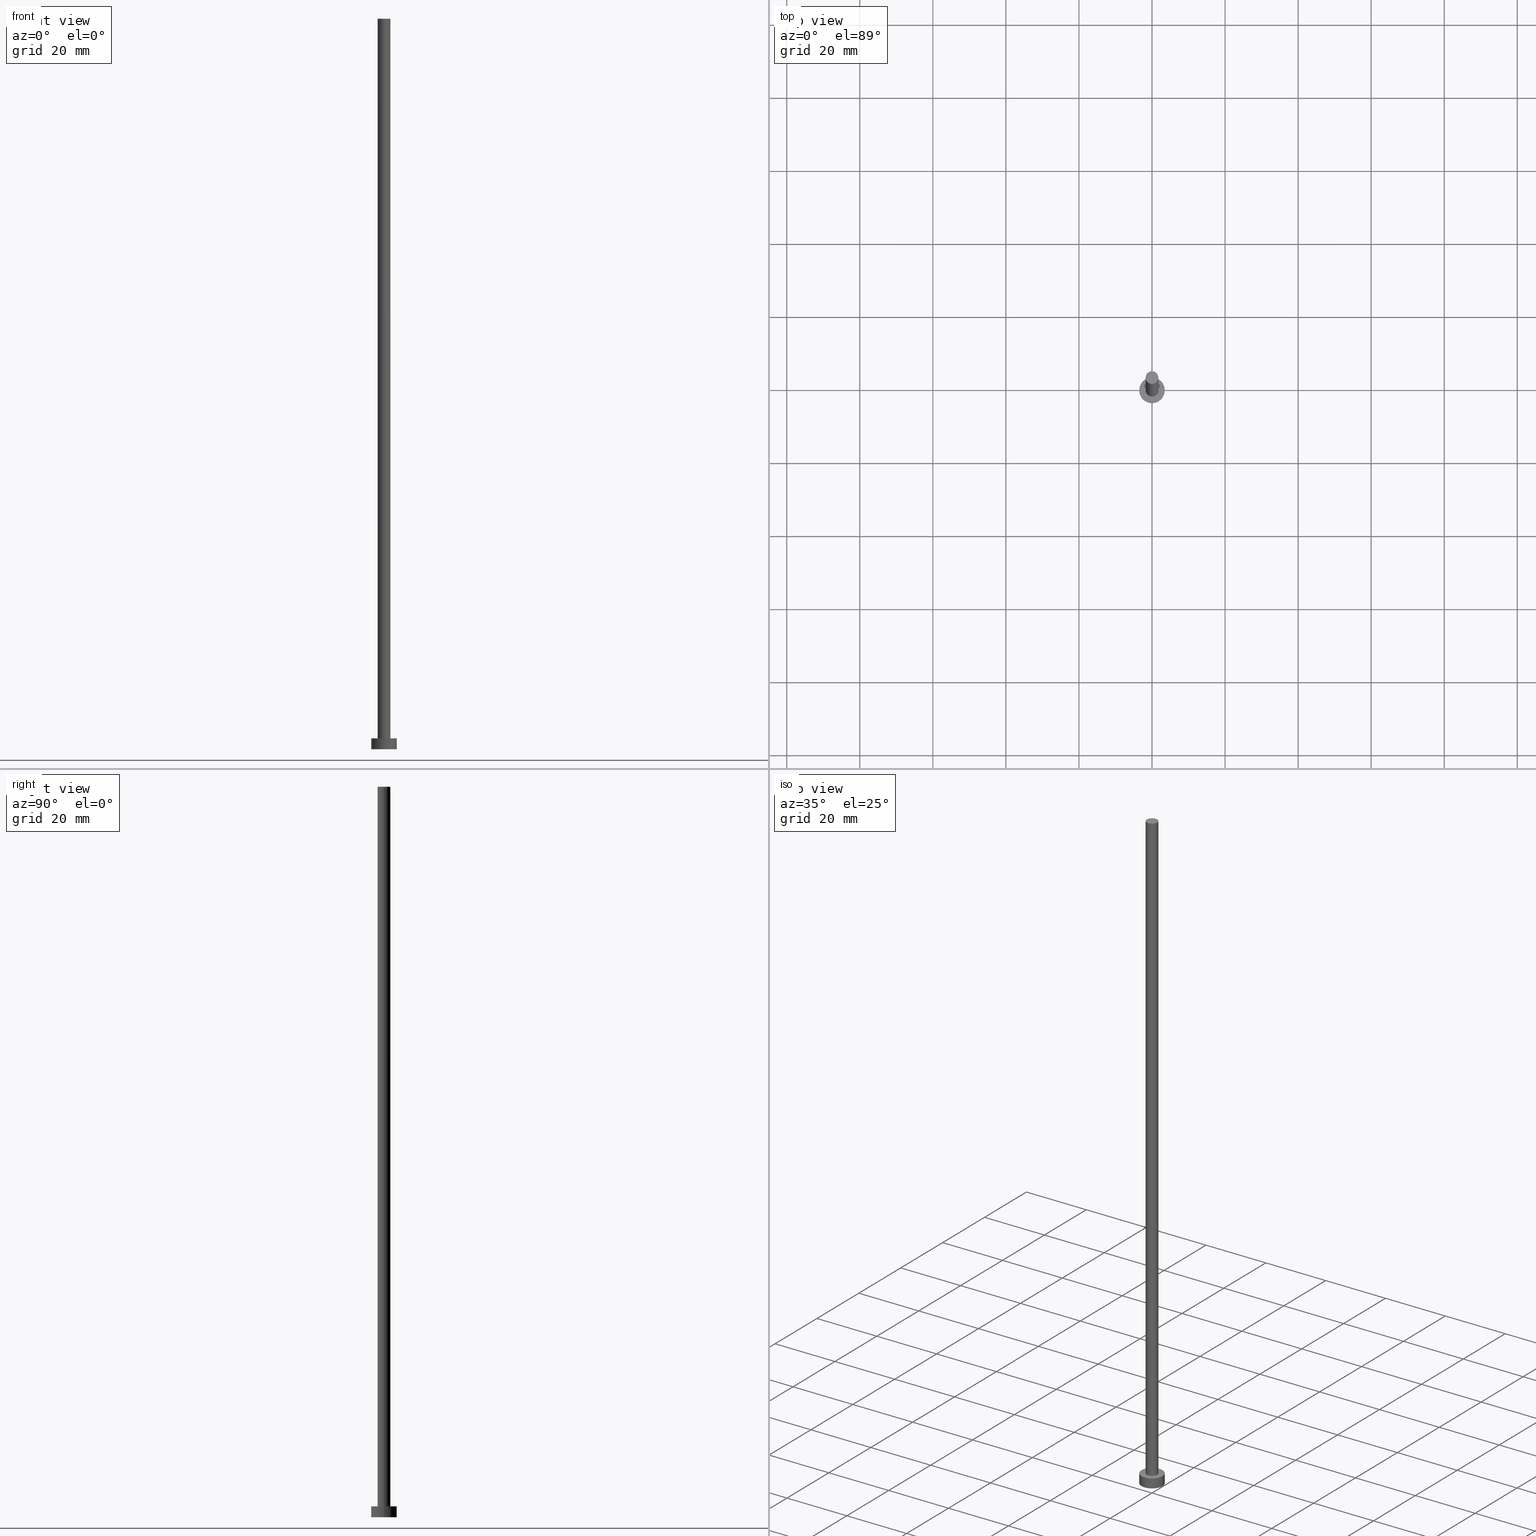
[diagram: canonical four-view strip — front | top / right | iso, engineering-drawing reading convention]
A machine part, canonical four-view strip (front | top / right | iso — engineering-drawing reading convention). The complete STEP part file that produces these views, byte-faithful:
ISO-10303-21;
HEADER;
FILE_DESCRIPTION (( 'STEP AP203' ),
    '1' );
FILE_NAME ('cb71.STEP',
    '2023-02-13T15:34:31',
    ( '' ),
    ( '' ),
    'SwSTEP 2.0',
    'SolidWorks 2019',
    '' );
FILE_SCHEMA (( 'CONFIG_CONTROL_DESIGN' ));
ENDSEC;

DATA;
#1 = FACE_BOUND ( 'NONE', #191, .T. ) ;
#2 = DIRECTION ( 'NONE',  ( -0.000000000000000000, -0.000000000000000000, -1.000000000000000000 ) ) ;
#3 = PERSON_AND_ORGANIZATION_ROLE ( 'creator' ) ;
#4 = SHAPE_DEFINITION_REPRESENTATION ( #105, #78 ) ;
#5 = PERSON_AND_ORGANIZATION_ROLE ( 'classification_officer' ) ;
#6 = ADVANCED_FACE ( 'NONE', ( #221 ), #249, .T. ) ;
#7 = CARTESIAN_POINT ( 'NONE',  ( -1.750000000000000000, 0.000000000000000000, 200.0000000000000000 ) ) ;
#8 = VERTEX_POINT ( 'NONE', #225 ) ;
#9 = VERTEX_POINT ( 'NONE', #138 ) ;
#10 = SECURITY_CLASSIFICATION ( '', '', #59 ) ;
#11 = PERSON_AND_ORGANIZATION_ROLE ( 'design_owner' ) ;
#12 = EDGE_LOOP ( 'NONE', ( #164, #171 ) ) ;
#13 = DIRECTION ( 'NONE',  ( 1.000000000000000000, 0.000000000000000000, 0.000000000000000000 ) ) ;
#14 = EDGE_LOOP ( 'NONE', ( #152, #204 ) ) ;
#15 = FACE_OUTER_BOUND ( 'NONE', #12, .T. ) ;
#16 = EDGE_CURVE ( 'NONE', #227, #8, #236, .T. ) ;
#17 = CARTESIAN_POINT ( 'NONE',  ( 1.750000000000000000, 2.143131898507868297E-16, 200.0000000000000000 ) ) ;
#18 = CIRCLE ( 'NONE', #35, 1.750000000000000000 ) ;
#19 = ORIENTED_EDGE ( 'NONE', *, *, #141, .T. ) ;
#20 = CARTESIAN_POINT ( 'NONE',  ( 3.500000000000000444, 4.286263797015737088E-16, 3.000000000000000000 ) ) ;
#21 = AXIS2_PLACEMENT_3D ( 'NONE', #144, #220, #216 ) ;
#22 = PERSON_AND_ORGANIZATION ( #243, #156 ) ;
#23 = EDGE_CURVE ( 'NONE', #8, #228, #57, .T. ) ;
#24 = DIRECTION ( 'NONE',  ( -0.000000000000000000, -0.000000000000000000, -1.000000000000000000 ) ) ;
#25 = DIRECTION ( 'NONE',  ( 0.000000000000000000, 0.000000000000000000, 1.000000000000000000 ) ) ;
#26 = APPROVAL ( #121, 'NEUR�EN�' ) ;
#27 = ADVANCED_FACE ( 'NONE', ( #173 ), #52, .T. ) ;
#28 = CARTESIAN_POINT ( 'NONE',  ( -1.750000000000000000, 0.000000000000000000, 3.000000000000000000 ) ) ;
#29 = ORIENTED_EDGE ( 'NONE', *, *, #108, .T. ) ;
#30 = VECTOR ( 'NONE', #93, 1000.000000000000000 ) ;
#31 = CARTESIAN_POINT ( 'NONE',  ( 1.750000000000000000, 2.143131898507868297E-16, 3.000000000000000000 ) ) ;
#32 = CARTESIAN_POINT ( 'NONE',  ( -1.750000000000000000, 0.000000000000000000, 200.0000000000000000 ) ) ;
#33 = ORIENTED_EDGE ( 'NONE', *, *, #233, .F. ) ;
#34 = CALENDAR_DATE ( 2023, 13, 2 ) ;
#35 = AXIS2_PLACEMENT_3D ( 'NONE', #133, #92, #13 ) ;
#36 = PLANE ( 'NONE',  #218 ) ;
#37 = ADVANCED_FACE ( 'NONE', ( #55 ), #116, .T. ) ;
#38 = COORDINATED_UNIVERSAL_TIME_OFFSET ( 1, 0, .AHEAD. ) ;
#39 = CC_DESIGN_PERSON_AND_ORGANIZATION_ASSIGNMENT ( #82, #3, ( #79 ) ) ;
#40 = APPROVAL_DATE_TIME ( #192, #182 ) ;
#41 = DIRECTION ( 'NONE',  ( 0.000000000000000000, 0.000000000000000000, 1.000000000000000000 ) ) ;
#42 = APPROVAL_ROLE ( '' ) ;
#43 = LOCAL_TIME ( 16, 34, 31.00000000000000000, #56 ) ;
#44 = CARTESIAN_POINT ( 'NONE',  ( 0.000000000000000000, 0.000000000000000000, 200.0000000000000000 ) ) ;
#45 = DIRECTION ( 'NONE',  ( 0.000000000000000000, 0.000000000000000000, 1.000000000000000000 ) ) ;
#46 = EDGE_LOOP ( 'NONE', ( #188, #117 ) ) ;
#47 = VERTEX_POINT ( 'NONE', #28 ) ;
#48 = AXIS2_PLACEMENT_3D ( 'NONE', #183, #109, #118 ) ;
#49 =( NAMED_UNIT ( * ) SI_UNIT ( $, .STERADIAN. ) SOLID_ANGLE_UNIT ( ) );
#50 =( NAMED_UNIT ( * ) PLANE_ANGLE_UNIT ( ) SI_UNIT ( $, .RADIAN. ) );
#51 = DIRECTION ( 'NONE',  ( 1.000000000000000000, 0.000000000000000000, -0.000000000000000000 ) ) ;
#52 = CYLINDRICAL_SURFACE ( 'NONE', #230, 1.750000000000000000 ) ;
#53 = CC_DESIGN_APPROVAL ( #26, ( #162 ) ) ;
#54 = CC_DESIGN_PERSON_AND_ORGANIZATION_ASSIGNMENT ( #89, #11, ( #219 ) ) ;
#55 = FACE_OUTER_BOUND ( 'NONE', #46, .T. ) ;
#56 = COORDINATED_UNIVERSAL_TIME_OFFSET ( 1, 0, .AHEAD. ) ;
#57 = CIRCLE ( 'NONE', #161, 3.500000000000000444 ) ;
#58 = CARTESIAN_POINT ( 'NONE',  ( 0.000000000000000000, 0.000000000000000000, 0.000000000000000000 ) ) ;
#59 = SECURITY_CLASSIFICATION_LEVEL ( 'unclassified' ) ;
#60 = LOCAL_TIME ( 16, 34, 31.00000000000000000, #38 ) ;
#61 = EDGE_CURVE ( 'NONE', #47, #150, #18, .T. ) ;
#62 = AXIS2_PLACEMENT_3D ( 'NONE', #245, #146, #168 ) ;
#63 = LOCAL_TIME ( 16, 34, 31.00000000000000000, #153 ) ;
#64 = DIRECTION ( 'NONE',  ( 0.000000000000000000, 0.000000000000000000, 1.000000000000000000 ) ) ;
#65 = ORIENTED_EDGE ( 'NONE', *, *, #69, .F. ) ;
#66 = FACE_OUTER_BOUND ( 'NONE', #14, .T. ) ;
#67 = DIRECTION ( 'NONE',  ( 1.000000000000000000, 0.000000000000000000, 0.000000000000000000 ) ) ;
#68 = CARTESIAN_POINT ( 'NONE',  ( 0.000000000000000000, 0.000000000000000000, 200.0000000000000000 ) ) ;
#69 = EDGE_CURVE ( 'NONE', #91, #9, #200, .T. ) ;
#70 = LINE ( 'NONE', #17, #30 ) ;
#71 = ORIENTED_EDGE ( 'NONE', *, *, #23, .T. ) ;
#72 = AXIS2_PLACEMENT_3D ( 'NONE', #68, #223, #131 ) ;
#73 = AXIS2_PLACEMENT_3D ( 'NONE', #44, #45, #198 ) ;
#74 = DIRECTION ( 'NONE',  ( 1.000000000000000000, 0.000000000000000000, 0.000000000000000000 ) ) ;
#75 = ORIENTED_EDGE ( 'NONE', *, *, #159, .F. ) ;
#76 = DATE_AND_TIME ( #34, #81 ) ;
#77 = APPROVAL_DATE_TIME ( #76, #26 ) ;
#78 = ADVANCED_BREP_SHAPE_REPRESENTATION ( 'cb71', ( #195, #231 ), #238 ) ;
#79 = PRODUCT_DEFINITION_FORMATION_WITH_SPECIFIED_SOURCE ( 'LIBOVOLN�', '', #219, .NOT_KNOWN. ) ;
#80 = CC_DESIGN_DATE_AND_TIME_ASSIGNMENT ( #229, #99, ( #162 ) ) ;
#81 = LOCAL_TIME ( 16, 34, 31.00000000000000000, #112 ) ;
#82 = PERSON_AND_ORGANIZATION ( #243, #156 ) ;
#83 = APPROVAL ( #126, 'NEUR�EN�' ) ;
#84 = CC_DESIGN_PERSON_AND_ORGANIZATION_ASSIGNMENT ( #239, #104, ( #79 ) ) ;
#85 = DESIGN_CONTEXT ( 'detailed design', #176, 'design' ) ;
#86 = ORIENTED_EDGE ( 'NONE', *, *, #61, .T. ) ;
#87 = APPROVAL_PERSON_ORGANIZATION ( #234, #83, #181 ) ;
#88 = ORIENTED_EDGE ( 'NONE', *, *, #16, .F. ) ;
#89 = PERSON_AND_ORGANIZATION ( #243, #156 ) ;
#90 = DIRECTION ( 'NONE',  ( -0.000000000000000000, -0.000000000000000000, -1.000000000000000000 ) ) ;
#91 = VERTEX_POINT ( 'NONE', #32 ) ;
#92 = DIRECTION ( 'NONE',  ( 0.000000000000000000, 0.000000000000000000, 1.000000000000000000 ) ) ;
#93 = DIRECTION ( 'NONE',  ( -0.000000000000000000, -0.000000000000000000, -1.000000000000000000 ) ) ;
#94 = ORIENTED_EDGE ( 'NONE', *, *, #155, .F. ) ;
#95 = CC_DESIGN_SECURITY_CLASSIFICATION ( #10, ( #79 ) ) ;
#96 = DIRECTION ( 'NONE',  ( -0.000000000000000000, -0.000000000000000000, -1.000000000000000000 ) ) ;
#97 = CARTESIAN_POINT ( 'NONE',  ( 3.500000000000000444, 4.286263797015737088E-16, 3.000000000000000000 ) ) ;
#98 = APPLICATION_CONTEXT ( 'configuration controlled 3d designs of mechanical parts and assemblies' ) ;
#99 = DATE_TIME_ROLE ( 'creation_date' ) ;
#100 = DATE_AND_TIME ( #211, #215 ) ;
#101 = VECTOR ( 'NONE', #154, 1000.000000000000000 ) ;
#102 = DIRECTION ( 'NONE',  ( 1.000000000000000000, 0.000000000000000000, 0.000000000000000000 ) ) ;
#103 = DIRECTION ( 'NONE',  ( 1.000000000000000000, 0.000000000000000000, 0.000000000000000000 ) ) ;
#104 = PERSON_AND_ORGANIZATION_ROLE ( 'design_supplier' ) ;
#105 = PRODUCT_DEFINITION_SHAPE ( 'NONE', 'NONE',  #162 ) ;
#106 = VECTOR ( 'NONE', #96, 1000.000000000000000 ) ;
#107 = CIRCLE ( 'NONE', #140, 3.500000000000000444 ) ;
#108 = EDGE_CURVE ( 'NONE', #228, #8, #207, .T. ) ;
#109 = DIRECTION ( 'NONE',  ( 0.000000000000000000, 0.000000000000000000, 1.000000000000000000 ) ) ;
#110 = VERTEX_POINT ( 'NONE', #165 ) ;
#111 = CLOSED_SHELL ( 'NONE', ( #6, #170, #174, #247, #213, #27, #37 ) ) ;
#112 = COORDINATED_UNIVERSAL_TIME_OFFSET ( 1, 0, .AHEAD. ) ;
#113 = AXIS2_PLACEMENT_3D ( 'NONE', #235, #24, #163 ) ;
#114 = ORIENTED_EDGE ( 'NONE', *, *, #194, .F. ) ;
#115 = APPLICATION_PROTOCOL_DEFINITION ( 'international standard', 'config_control_design', 1994, #176 ) ;
#116 = PLANE ( 'NONE',  #241 ) ;
#117 = ORIENTED_EDGE ( 'NONE', *, *, #155, .T. ) ;
#118 = DIRECTION ( 'NONE',  ( 1.000000000000000000, 0.000000000000000000, 0.000000000000000000 ) ) ;
#119 = ORIENTED_EDGE ( 'NONE', *, *, #16, .T. ) ;
#120 = CC_DESIGN_DATE_AND_TIME_ASSIGNMENT ( #100, #139, ( #10 ) ) ;
#121 = APPROVAL_STATUS ( 'not_yet_approved' ) ;
#122 = CARTESIAN_POINT ( 'NONE',  ( 0.000000000000000000, 0.000000000000000000, 0.000000000000000000 ) ) ;
#123 = CALENDAR_DATE ( 2023, 13, 2 ) ;
#124 = CYLINDRICAL_SURFACE ( 'NONE', #113, 3.500000000000000444 ) ;
#125 = PLANE ( 'NONE',  #209 ) ;
#126 = APPROVAL_STATUS ( 'not_yet_approved' ) ;
#127 = CC_DESIGN_APPROVAL ( #83, ( #79 ) ) ;
#128 = EDGE_CURVE ( 'NONE', #91, #47, #203, .T. ) ;
#129 = ORIENTED_EDGE ( 'NONE', *, *, #61, .F. ) ;
#130 = CARTESIAN_POINT ( 'NONE',  ( 0.000000000000000000, 0.000000000000000000, 3.000000000000000000 ) ) ;
#131 = DIRECTION ( 'NONE',  ( -1.000000000000000000, 0.000000000000000000, 0.000000000000000000 ) ) ;
#132 = CIRCLE ( 'NONE', #21, 3.500000000000000444 ) ;
#133 = CARTESIAN_POINT ( 'NONE',  ( 0.000000000000000000, 0.000000000000000000, 3.000000000000000000 ) ) ;
#134 = CARTESIAN_POINT ( 'NONE',  ( 0.000000000000000000, 0.000000000000000000, 200.0000000000000000 ) ) ;
#135 = DIRECTION ( 'NONE',  ( 0.000000000000000000, 0.000000000000000000, 1.000000000000000000 ) ) ;
#136 = LINE ( 'NONE', #208, #101 ) ;
#137 = CARTESIAN_POINT ( 'NONE',  ( 0.000000000000000000, 0.000000000000000000, 0.000000000000000000 ) ) ;
#138 = CARTESIAN_POINT ( 'NONE',  ( 1.750000000000000000, 2.143131898507868297E-16, 200.0000000000000000 ) ) ;
#139 = DATE_TIME_ROLE ( 'classification_date' ) ;
#140 = AXIS2_PLACEMENT_3D ( 'NONE', #160, #41, #103 ) ;
#141 = EDGE_CURVE ( 'NONE', #9, #150, #70, .T. ) ;
#142 = APPROVAL_STATUS ( 'not_yet_approved' ) ;
#143 = APPROVAL_PERSON_ORGANIZATION ( #212, #182, #42 ) ;
#144 = CARTESIAN_POINT ( 'NONE',  ( 0.000000000000000000, 0.000000000000000000, 3.000000000000000000 ) ) ;
#145 = EDGE_CURVE ( 'NONE', #227, #110, #132, .T. ) ;
#146 = DIRECTION ( 'NONE',  ( 0.000000000000000000, 0.000000000000000000, 1.000000000000000000 ) ) ;
#147 = FACE_OUTER_BOUND ( 'NONE', #246, .T. ) ;
#148 = EDGE_LOOP ( 'NONE', ( #94, #19, #199, #206 ) ) ;
#149 = DIRECTION ( 'NONE',  ( 0.000000000000000000, 0.000000000000000000, 1.000000000000000000 ) ) ;
#150 = VERTEX_POINT ( 'NONE', #31 ) ;
#151 = CARTESIAN_POINT ( 'NONE',  ( 0.000000000000000000, 0.000000000000000000, 3.000000000000000000 ) ) ;
#152 = ORIENTED_EDGE ( 'NONE', *, *, #108, .F. ) ;
#153 = COORDINATED_UNIVERSAL_TIME_OFFSET ( 1, 0, .AHEAD. ) ;
#154 = DIRECTION ( 'NONE',  ( -0.000000000000000000, -0.000000000000000000, -1.000000000000000000 ) ) ;
#155 = EDGE_CURVE ( 'NONE', #9, #91, #224, .T. ) ;
#156 = ORGANIZATION ( 'NEUR�EN�', 'NEUR�EN�', '' ) ;
#157 = FACE_OUTER_BOUND ( 'NONE', #253, .T. ) ;
#158 = CALENDAR_DATE ( 2023, 13, 2 ) ;
#159 = EDGE_CURVE ( 'NONE', #150, #47, #196, .T. ) ;
#160 = CARTESIAN_POINT ( 'NONE',  ( 0.000000000000000000, 0.000000000000000000, 3.000000000000000000 ) ) ;
#161 = AXIS2_PLACEMENT_3D ( 'NONE', #122, #25, #102 ) ;
#162 = PRODUCT_DEFINITION ( 'NEZN�M�', '', #79, #85 ) ;
#163 = DIRECTION ( 'NONE',  ( -1.000000000000000000, 0.000000000000000000, 0.000000000000000000 ) ) ;
#164 = ORIENTED_EDGE ( 'NONE', *, *, #194, .T. ) ;
#165 = CARTESIAN_POINT ( 'NONE',  ( -3.500000000000000444, 0.000000000000000000, 3.000000000000000000 ) ) ;
#166 = ORIENTED_EDGE ( 'NONE', *, *, #233, .T. ) ;
#167 = APPLICATION_PROTOCOL_DEFINITION ( 'international standard', 'config_control_design', 1994, #98 ) ;
#168 = DIRECTION ( 'NONE',  ( 1.000000000000000000, 0.000000000000000000, 0.000000000000000000 ) ) ;
#169 = DIRECTION ( 'NONE',  ( 0.000000000000000000, 0.000000000000000000, 1.000000000000000000 ) ) ;
#170 = ADVANCED_FACE ( 'NONE', ( #147 ), #222, .T. ) ;
#171 = ORIENTED_EDGE ( 'NONE', *, *, #145, .T. ) ;
#172 = MECHANICAL_CONTEXT ( 'NONE', #98, 'mechanical' ) ;
#173 = FACE_OUTER_BOUND ( 'NONE', #190, .T. ) ;
#174 = ADVANCED_FACE ( 'NONE', ( #157 ), #124, .T. ) ;
#175 = CARTESIAN_POINT ( 'NONE',  ( -3.500000000000000444, 0.000000000000000000, 0.000000000000000000 ) ) ;
#176 = APPLICATION_CONTEXT ( 'configuration controlled 3d designs of mechanical parts and assemblies' ) ;
#177 = DIRECTION ( 'NONE',  ( -1.000000000000000000, 0.000000000000000000, 0.000000000000000000 ) ) ;
#178 = COORDINATED_UNIVERSAL_TIME_OFFSET ( 1, 0, .AHEAD. ) ;
#179 = PRODUCT_RELATED_PRODUCT_CATEGORY ( 'detail', '', ( #219 ) ) ;
#180 = AXIS2_PLACEMENT_3D ( 'NONE', #185, #248, #67 ) ;
#181 = APPROVAL_ROLE ( '' ) ;
#182 = APPROVAL ( #142, 'NEUR�EN�' ) ;
#183 = CARTESIAN_POINT ( 'NONE',  ( 0.000000000000000000, 0.000000000000000000, 0.000000000000000000 ) ) ;
#184 = ORIENTED_EDGE ( 'NONE', *, *, #145, .F. ) ;
#185 = CARTESIAN_POINT ( 'NONE',  ( 0.000000000000000000, 0.000000000000000000, 3.000000000000000000 ) ) ;
#186 = ORIENTED_EDGE ( 'NONE', *, *, #141, .F. ) ;
#187 = APPROVAL_PERSON_ORGANIZATION ( #205, #26, #254 ) ;
#188 = ORIENTED_EDGE ( 'NONE', *, *, #69, .T. ) ;
#189 = CALENDAR_DATE ( 2023, 13, 2 ) ;
#190 = EDGE_LOOP ( 'NONE', ( #186, #65, #250, #86 ) ) ;
#191 = EDGE_LOOP ( 'NONE', ( #129, #75 ) ) ;
#192 = DATE_AND_TIME ( #123, #60 ) ;
#193 = APPROVAL_DATE_TIME ( #237, #83 ) ;
#194 = EDGE_CURVE ( 'NONE', #110, #227, #107, .T. ) ;
#195 = MANIFOLD_SOLID_BREP ( 'P�idat vysunut�m3', #111 ) ;
#196 = CIRCLE ( 'NONE', #180, 1.750000000000000000 ) ;
#197 = DIRECTION ( 'NONE',  ( 1.000000000000000000, 0.000000000000000000, -0.000000000000000000 ) ) ;
#198 = DIRECTION ( 'NONE',  ( 1.000000000000000000, 0.000000000000000000, 0.000000000000000000 ) ) ;
#199 = ORIENTED_EDGE ( 'NONE', *, *, #159, .T. ) ;
#200 = CIRCLE ( 'NONE', #62, 1.750000000000000000 ) ;
#201 = PERSON_AND_ORGANIZATION ( #243, #156 ) ;
#202 = CC_DESIGN_APPROVAL ( #182, ( #10 ) ) ;
#203 = LINE ( 'NONE', #7, #244 ) ;
#204 = ORIENTED_EDGE ( 'NONE', *, *, #23, .F. ) ;
#205 = PERSON_AND_ORGANIZATION ( #243, #156 ) ;
#206 = ORIENTED_EDGE ( 'NONE', *, *, #128, .F. ) ;
#207 = CIRCLE ( 'NONE', #48, 3.500000000000000444 ) ;
#208 = CARTESIAN_POINT ( 'NONE',  ( -3.500000000000000444, 0.000000000000000000, 3.000000000000000000 ) ) ;
#209 = AXIS2_PLACEMENT_3D ( 'NONE', #58, #149, #51 ) ;
#210 = DIRECTION ( 'NONE',  ( -0.000000000000000000, -0.000000000000000000, -1.000000000000000000 ) ) ;
#211 = CALENDAR_DATE ( 2023, 13, 2 ) ;
#212 = PERSON_AND_ORGANIZATION ( #243, #156 ) ;
#213 = ADVANCED_FACE ( 'NONE', ( #66 ), #125, .F. ) ;
#214 = CC_DESIGN_PERSON_AND_ORGANIZATION_ASSIGNMENT ( #22, #5, ( #10 ) ) ;
#215 = LOCAL_TIME ( 16, 34, 31.00000000000000000, #178 ) ;
#216 = DIRECTION ( 'NONE',  ( 1.000000000000000000, 0.000000000000000000, 0.000000000000000000 ) ) ;
#217 = UNCERTAINTY_MEASURE_WITH_UNIT (LENGTH_MEASURE( 1.000000000000000082E-05 ), #226, 'distance_accuracy_value', 'NONE');
#218 = AXIS2_PLACEMENT_3D ( 'NONE', #151, #169, #252 ) ;
#219 = PRODUCT ( 'cb71', 'cb71', '', ( #172 ) ) ;
#220 = DIRECTION ( 'NONE',  ( 0.000000000000000000, 0.000000000000000000, 1.000000000000000000 ) ) ;
#221 = FACE_OUTER_BOUND ( 'NONE', #148, .T. ) ;
#222 = CYLINDRICAL_SURFACE ( 'NONE', #242, 3.500000000000000444 ) ;
#223 = DIRECTION ( 'NONE',  ( -0.000000000000000000, -0.000000000000000000, -1.000000000000000000 ) ) ;
#224 = CIRCLE ( 'NONE', #73, 1.750000000000000000 ) ;
#225 = CARTESIAN_POINT ( 'NONE',  ( 3.500000000000000444, 4.286263797015737088E-16, 0.000000000000000000 ) ) ;
#226 =( LENGTH_UNIT ( ) NAMED_UNIT ( * ) SI_UNIT ( .MILLI., .METRE. ) );
#227 = VERTEX_POINT ( 'NONE', #97 ) ;
#228 = VERTEX_POINT ( 'NONE', #175 ) ;
#229 = DATE_AND_TIME ( #189, #63 ) ;
#230 = AXIS2_PLACEMENT_3D ( 'NONE', #255, #2, #177 ) ;
#231 = AXIS2_PLACEMENT_3D ( 'NONE', #137, #135, #74 ) ;
#232 = DIRECTION ( 'NONE',  ( -1.000000000000000000, 0.000000000000000000, 0.000000000000000000 ) ) ;
#233 = EDGE_CURVE ( 'NONE', #110, #228, #136, .T. ) ;
#234 = PERSON_AND_ORGANIZATION ( #243, #156 ) ;
#235 = CARTESIAN_POINT ( 'NONE',  ( 0.000000000000000000, 0.000000000000000000, 3.000000000000000000 ) ) ;
#236 = LINE ( 'NONE', #20, #106 ) ;
#237 = DATE_AND_TIME ( #158, #43 ) ;
#238 =( GEOMETRIC_REPRESENTATION_CONTEXT ( 3 ) GLOBAL_UNCERTAINTY_ASSIGNED_CONTEXT ( ( #217 ) ) GLOBAL_UNIT_ASSIGNED_CONTEXT ( ( #226, #50, #49 ) ) REPRESENTATION_CONTEXT ( 'NONE', 'WORKASPACE' ) );
#239 = PERSON_AND_ORGANIZATION ( #243, #156 ) ;
#240 = CC_DESIGN_PERSON_AND_ORGANIZATION_ASSIGNMENT ( #201, #251, ( #162 ) ) ;
#241 = AXIS2_PLACEMENT_3D ( 'NONE', #134, #64, #197 ) ;
#242 = AXIS2_PLACEMENT_3D ( 'NONE', #130, #210, #232 ) ;
#243 = PERSON ( 'NEUR�EN�', 'NEUR�EN�', 'NEUR�EN�', ('NEUR�EN�'), ('NEUR�EN�'), ('NEUR�EN�') ) ;
#244 = VECTOR ( 'NONE', #90, 1000.000000000000000 ) ;
#245 = CARTESIAN_POINT ( 'NONE',  ( 0.000000000000000000, 0.000000000000000000, 200.0000000000000000 ) ) ;
#246 = EDGE_LOOP ( 'NONE', ( #184, #119, #71, #33 ) ) ;
#247 = ADVANCED_FACE ( 'NONE', ( #1, #15 ), #36, .T. ) ;
#248 = DIRECTION ( 'NONE',  ( 0.000000000000000000, 0.000000000000000000, 1.000000000000000000 ) ) ;
#249 = CYLINDRICAL_SURFACE ( 'NONE', #72, 1.750000000000000000 ) ;
#250 = ORIENTED_EDGE ( 'NONE', *, *, #128, .T. ) ;
#251 = PERSON_AND_ORGANIZATION_ROLE ( 'creator' ) ;
#252 = DIRECTION ( 'NONE',  ( 1.000000000000000000, 0.000000000000000000, -0.000000000000000000 ) ) ;
#253 = EDGE_LOOP ( 'NONE', ( #88, #114, #166, #29 ) ) ;
#254 = APPROVAL_ROLE ( '' ) ;
#255 = CARTESIAN_POINT ( 'NONE',  ( 0.000000000000000000, 0.000000000000000000, 200.0000000000000000 ) ) ;
ENDSEC;
END-ISO-10303-21;
